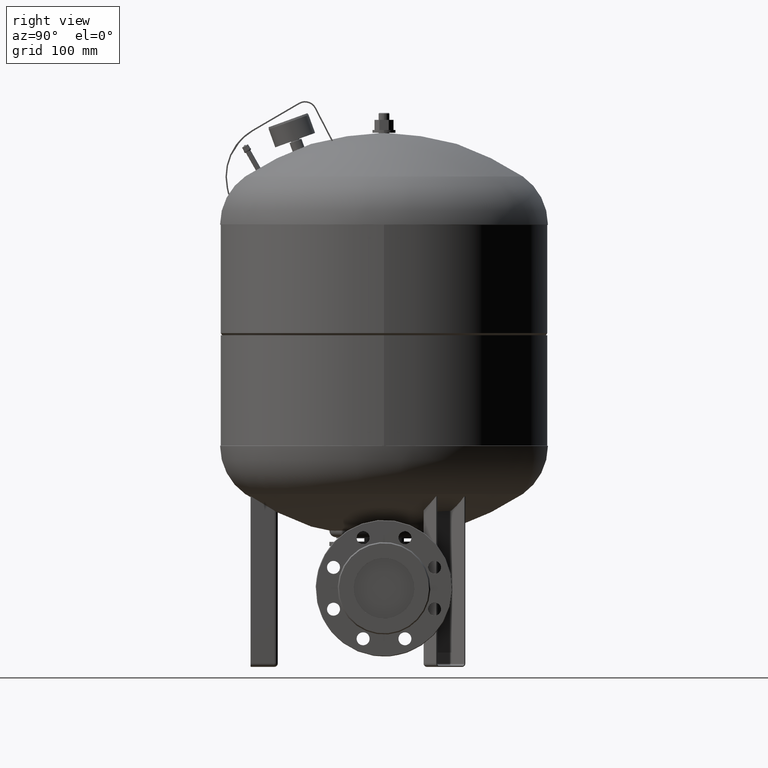
[diagram: clean part render]
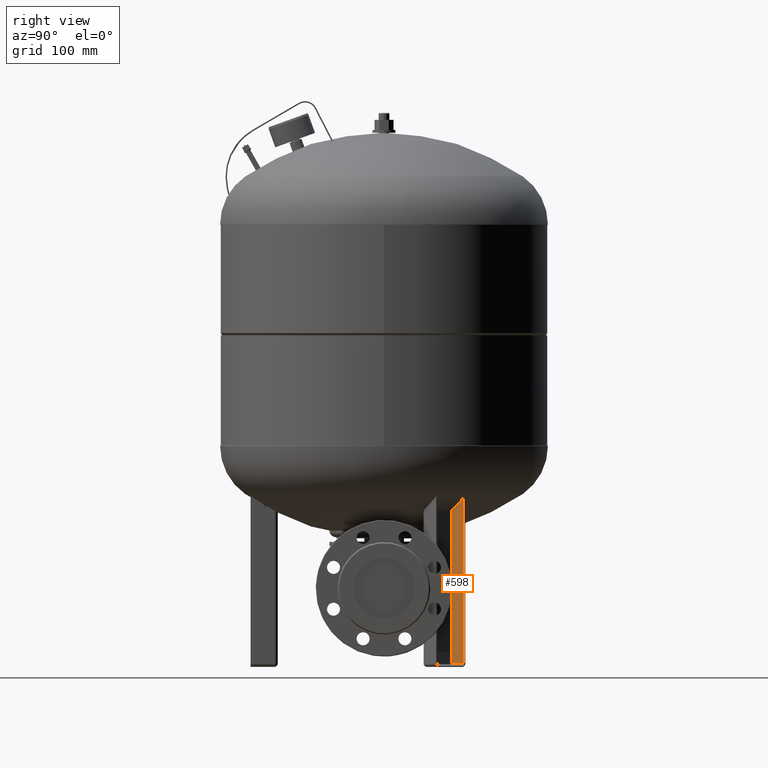
[diagram: same view with one face highlighted and labeled with its STEP entity id]
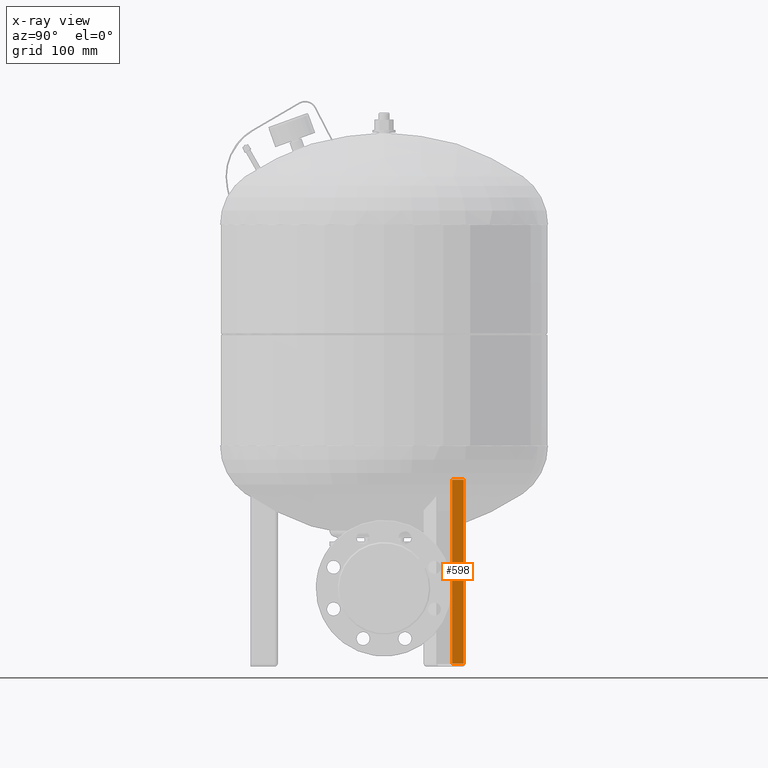
[diagram: x-ray of the same camera — body ghosted, the highlighted face saturated]
A machine part, right view. The second image highlights one B-rep face of the part: STEP entity #598.
The next image is the same camera in x-ray: the body ghosted, the highlighted face saturated — about 0% of this face is hidden behind the body in this view.
In plain terms, the highlighted planar face has unit normal (-0.5, 0.866, 0).
Its self-contained STEP definition (entity closure, byte-faithful):
#216=CARTESIAN_POINT('',(127.747077307402440,99.735571585149813,274.0));
#217=VERTEX_POINT('',#216);
#225=CARTESIAN_POINT('',(157.191941036073360,116.735571585149810,274.0));
#226=VERTEX_POINT('',#225);
#227=CARTESIAN_POINT('',(157.191941036073360,116.735571585149810,274.0));
#228=DIRECTION('',(-0.866025403784439,-0.500000000000000,0.0));
#229=VECTOR('',#228,34.000000000000007);
#230=LINE('',#227,#229);
#231=EDGE_CURVE('',#226,#217,#230,.T.);
#316=CARTESIAN_POINT('',(157.191941036073360,116.735571585149810,4.500000000000004));
#317=VERTEX_POINT('',#316);
#318=CARTESIAN_POINT('',(157.191941036073360,116.735571585149810,274.0));
#319=DIRECTION('',(0.0,0.0,-1.0));
#320=VECTOR('',#319,269.500000000000000);
#321=LINE('',#318,#320);
#322=EDGE_CURVE('',#226,#317,#321,.T.);
#563=CARTESIAN_POINT('',(127.747077307402440,99.735571585149827,4.500000000000004));
#564=VERTEX_POINT('',#563);
#565=CARTESIAN_POINT('',(157.191941036073360,116.735571585149810,4.500000000000004));
#566=DIRECTION('',(-0.866025403784439,-0.500000000000000,0.0));
#567=VECTOR('',#566,34.0);
#568=LINE('',#565,#567);
#569=EDGE_CURVE('',#317,#564,#568,.T.);
#582=CARTESIAN_POINT('',(125.582013797941330,98.485571585149827,2.000000000000004));
#583=DIRECTION('',(-0.500000000000000,0.866025403784439,1.836970E-016));
#584=DIRECTION('',(-0.866025403784439,-0.500000000000000,-1.019723E-032));
#585=AXIS2_PLACEMENT_3D('',#582,#583,#584);
#586=PLANE('',#585);
#587=ORIENTED_EDGE('',*,*,#322,.F.);
#588=ORIENTED_EDGE('',*,*,#231,.T.);
#589=CARTESIAN_POINT('',(127.747077307402440,99.735571585149827,4.500000000000004));
#590=DIRECTION('',(0.0,0.0,1.0));
#591=VECTOR('',#590,269.500000000000000);
#592=LINE('',#589,#591);
#593=EDGE_CURVE('',#564,#217,#592,.T.);
#594=ORIENTED_EDGE('',*,*,#593,.F.);
#595=ORIENTED_EDGE('',*,*,#569,.F.);
#596=EDGE_LOOP('',(#587,#588,#594,#595));
#597=FACE_OUTER_BOUND('',#596,.T.);
#598=ADVANCED_FACE('',(#597),#586,.F.);